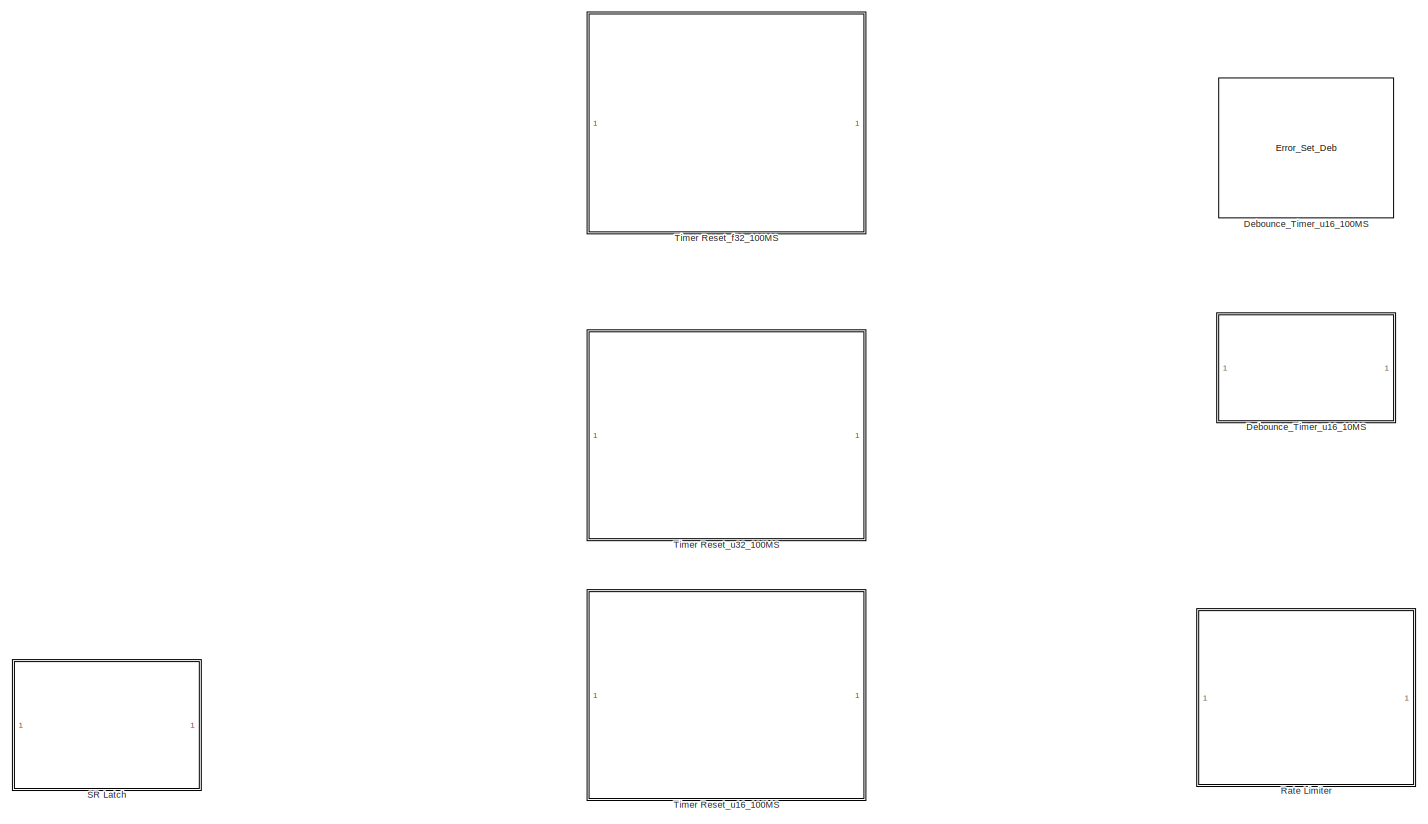
[diagram: root canvas - part 1/3, full width, top band]
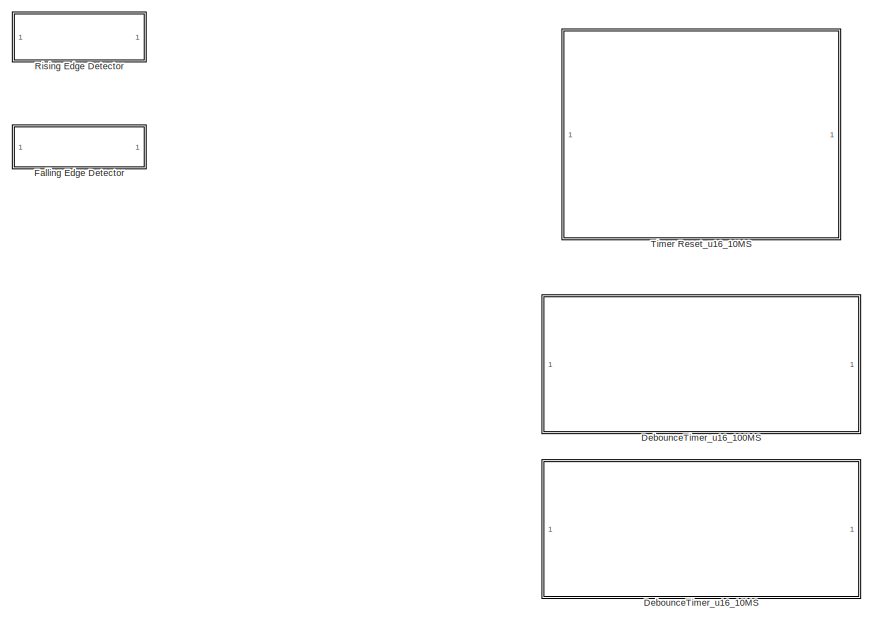
[diagram: root canvas - part 2/3, bottom left region]
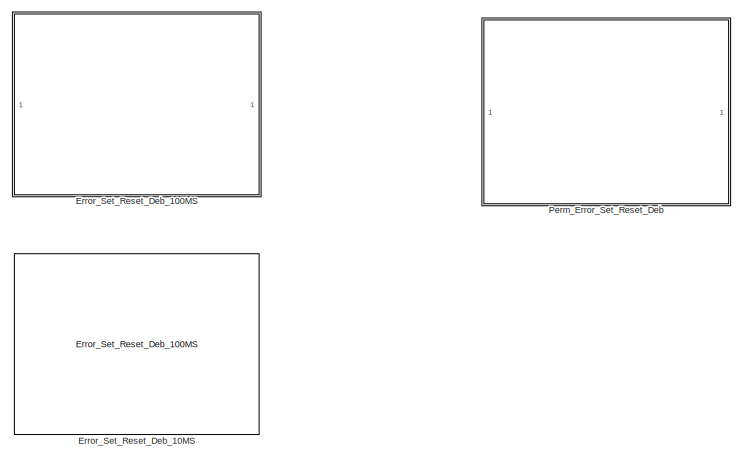
[diagram: root canvas - part 3/3, bottom right region]
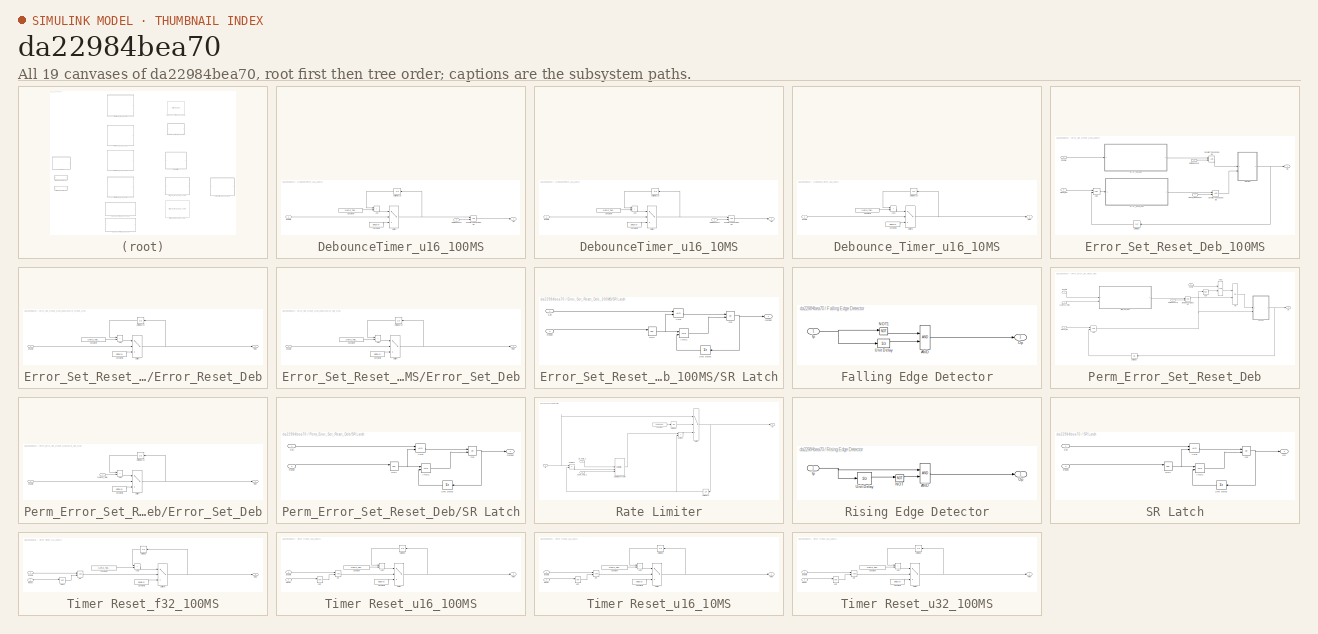
[diagram: thumbnail index - all 19 canvases of the model, root first then tree order]
MODEL slx_da22984bea70
KIND library
CONFIG AbsTol = auto
CONFIG EnableMultiTasking = off
CONFIG FixedStep = auto
CONFIG MaxStep = auto
CONFIG MinStep = auto
CONFIG RelTol = 1e-3
CONFIG SampleTimeConstraint = Unconstrained
CONFIG SolverName = VariableStepAuto
CONFIG StartTime = 0.0
CONFIG StopTime = 10.0
BLOCK [SubSystem] DebounceTimer_u16_100MS
BLOCK [Sum] DebounceTimer_u16_100MS/Add
  IconShape = rectangular
BLOCK [Constant] DebounceTimer_u16_100MS/Constant7
  Value = SAMPLE_TIME_100MS
BLOCK [Constant] DebounceTimer_u16_100MS/Constant8
  Value = uint16(0)
BLOCK [Inport] DebounceTimer_u16_100MS/Enable
BLOCK [RelationalOperator] DebounceTimer_u16_100MS/GreaterThanOrEqual2
  InputSameDT = off
  OutDataTypeStr = boolean
  RndMeth = Simplest
BLOCK [Outport] DebounceTimer_u16_100MS/Op
BLOCK [Inport] DebounceTimer_u16_100MS/SetDebounce
  Port = 2
BLOCK [Switch] DebounceTimer_u16_100MS/Switch
  Criteria = u2 ~= 0
  InputSameDT = off
  SaturateOnIntegerOverflow = off
BLOCK [UnitDelay] DebounceTimer_u16_100MS/Unit Delay10
  HasFrameUpgradeWarning = on
  SampleTime = -1
BLOCK [SubSystem] DebounceTimer_u16_10MS
BLOCK [Sum] DebounceTimer_u16_10MS/Add
  IconShape = rectangular
BLOCK [Constant] DebounceTimer_u16_10MS/Constant7
  Value = SAMPLE_TIME_10MS
BLOCK [Constant] DebounceTimer_u16_10MS/Constant8
  Value = uint16(0)
BLOCK [Inport] DebounceTimer_u16_10MS/Enable
BLOCK [RelationalOperator] DebounceTimer_u16_10MS/GreaterThanOrEqual2
  InputSameDT = off
  OutDataTypeStr = boolean
  RndMeth = Simplest
BLOCK [Outport] DebounceTimer_u16_10MS/Op
BLOCK [Inport] DebounceTimer_u16_10MS/SetDebounce
  Port = 2
BLOCK [Switch] DebounceTimer_u16_10MS/Switch
  Criteria = u2 ~= 0
  InputSameDT = off
  SaturateOnIntegerOverflow = off
BLOCK [UnitDelay] DebounceTimer_u16_10MS/Unit Delay10
  HasFrameUpgradeWarning = on
  SampleTime = -1
BLOCK [Reference] Debounce_Timer_u16_100MS  REF=$bdroot/Error_Set_Reset_Deb_100MS/Error_Set_Deb
  SourceBlock = $bdroot/Error_Set_Reset_Deb_100MS/Error_Set_Deb
  SourceType = SubSystem
BLOCK [SubSystem] Debounce_Timer_u16_10MS
BLOCK [Sum] Debounce_Timer_u16_10MS/Add1
  IconShape = rectangular
BLOCK [Constant] Debounce_Timer_u16_10MS/Constant7
  Value = SAMPLE_TIME_10MS
BLOCK [Constant] Debounce_Timer_u16_10MS/Constant8
  Value = uint16(0)
BLOCK [Inport] Debounce_Timer_u16_10MS/Enable
BLOCK [Switch] Debounce_Timer_u16_10MS/Switch2
  Criteria = u2 ~= 0
  InputSameDT = off
  SaturateOnIntegerOverflow = off
BLOCK [Outport] Debounce_Timer_u16_10MS/Timer
BLOCK [UnitDelay] Debounce_Timer_u16_10MS/Unit Delay10
  HasFrameUpgradeWarning = on
  SampleTime = -1
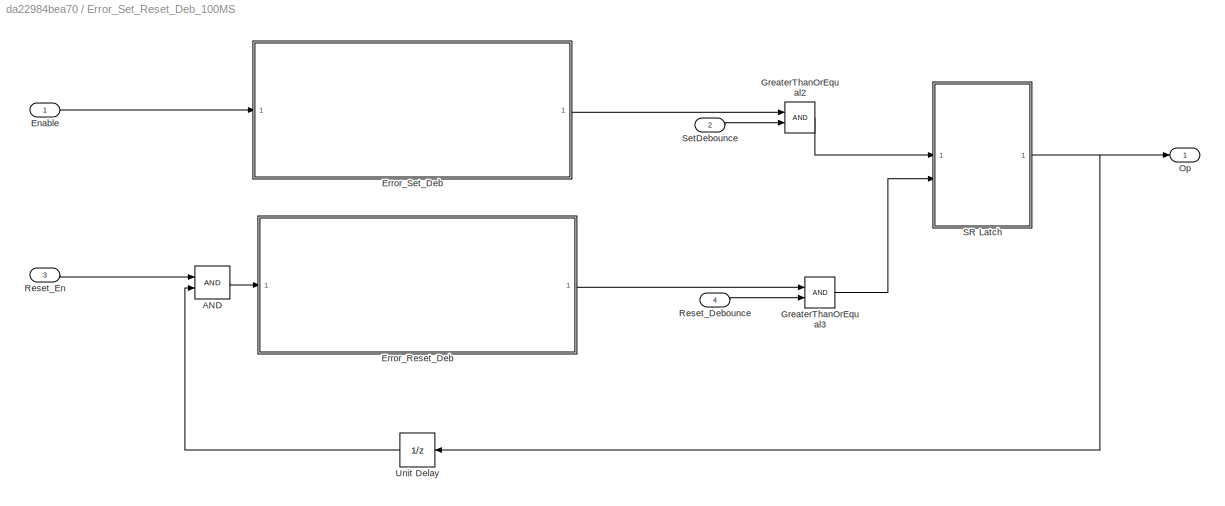
BLOCK [SubSystem] Error_Set_Reset_Deb_100MS
BLOCK [Logic] Error_Set_Reset_Deb_100MS/AND
  AllPortsSameDT = off
  OutDataTypeStr = boolean
BLOCK [Inport] Error_Set_Reset_Deb_100MS/Enable
BLOCK [SubSystem] Error_Set_Reset_Deb_100MS/Error_Reset_Deb
BLOCK [Sum] Error_Set_Reset_Deb_100MS/Error_Reset_Deb/Add
  IconShape = rectangular
BLOCK [Constant] Error_Set_Reset_Deb_100MS/Error_Reset_Deb/Constant7
  Value = SAMPLE_TIME_100MS
BLOCK [Constant] Error_Set_Reset_Deb_100MS/Error_Reset_Deb/Constant8
  Value = uint16(0)
BLOCK [Inport] Error_Set_Reset_Deb_100MS/Error_Reset_Deb/Enable
BLOCK [Switch] Error_Set_Reset_Deb_100MS/Error_Reset_Deb/Switch
  Criteria = u2 ~= 0
  InputSameDT = off
  SaturateOnIntegerOverflow = off
BLOCK [Outport] Error_Set_Reset_Deb_100MS/Error_Reset_Deb/Timer
BLOCK [UnitDelay] Error_Set_Reset_Deb_100MS/Error_Reset_Deb/Unit Delay10
  HasFrameUpgradeWarning = on
  SampleTime = -1
BLOCK [SubSystem] Error_Set_Reset_Deb_100MS/Error_Set_Deb
BLOCK [Sum] Error_Set_Reset_Deb_100MS/Error_Set_Deb/Add
  IconShape = rectangular
BLOCK [Constant] Error_Set_Reset_Deb_100MS/Error_Set_Deb/Constant7
  Value = SAMPLE_TIME_100MS
BLOCK [Constant] Error_Set_Reset_Deb_100MS/Error_Set_Deb/Constant8
  Value = uint16(0)
BLOCK [Inport] Error_Set_Reset_Deb_100MS/Error_Set_Deb/Enable
BLOCK [Switch] Error_Set_Reset_Deb_100MS/Error_Set_Deb/Switch
  Criteria = u2 ~= 0
  InputSameDT = off
  SaturateOnIntegerOverflow = off
BLOCK [Outport] Error_Set_Reset_Deb_100MS/Error_Set_Deb/Timer
BLOCK [UnitDelay] Error_Set_Reset_Deb_100MS/Error_Set_Deb/Unit Delay10
  HasFrameUpgradeWarning = on
  SampleTime = -1
BLOCK [RelationalOperator] Error_Set_Reset_Deb_100MS/GreaterThanOrEqual2
  InputSameDT = off
  OutDataTypeStr = boolean
  RndMeth = Simplest
BLOCK [RelationalOperator] Error_Set_Reset_Deb_100MS/GreaterThanOrEqual3
  InputSameDT = off
  OutDataTypeStr = boolean
  RndMeth = Simplest
BLOCK [Outport] Error_Set_Reset_Deb_100MS/Op
BLOCK [Inport] Error_Set_Reset_Deb_100MS/Reset_Debounce
  Port = 4
BLOCK [Inport] Error_Set_Reset_Deb_100MS/Reset_En
  Port = 3
BLOCK [SubSystem] Error_Set_Reset_Deb_100MS/SR Latch
  Permissions = ReadOnly
BLOCK [Logic] Error_Set_Reset_Deb_100MS/SR Latch/AND
  AllPortsSameDT = off
  OutDataTypeStr = boolean
BLOCK [Logic] Error_Set_Reset_Deb_100MS/SR Latch/AND1
  AllPortsSameDT = off
  OutDataTypeStr = boolean
BLOCK [Logic] Error_Set_Reset_Deb_100MS/SR Latch/NOT
  AllPortsSameDT = off
  IconShape = distinctive
  Operator = NOT
  OutDataTypeStr = boolean
BLOCK [Logic] Error_Set_Reset_Deb_100MS/SR Latch/OR
  AllPortsSameDT = off
  Operator = OR
  OutDataTypeStr = boolean
BLOCK [Outport] Error_Set_Reset_Deb_100MS/SR Latch/Output
BLOCK [Inport] Error_Set_Reset_Deb_100MS/SR Latch/Reset
  Port = 2
BLOCK [Inport] Error_Set_Reset_Deb_100MS/SR Latch/Set
BLOCK [UnitDelay] Error_Set_Reset_Deb_100MS/SR Latch/Unit Delay
  HasFrameUpgradeWarning = on
  SampleTime = -1
BLOCK [Inport] Error_Set_Reset_Deb_100MS/SetDebounce
  Port = 2
BLOCK [UnitDelay] Error_Set_Reset_Deb_100MS/Unit Delay
  HasFrameUpgradeWarning = on
  SampleTime = -1
BLOCK [Reference] Error_Set_Reset_Deb_10MS  REF=$bdroot/Error_Set_Reset_Deb_100MS
  SourceBlock = $bdroot/Error_Set_Reset_Deb_100MS
  SourceType = SubSystem
BLOCK [SubSystem] Falling Edge Detector
BLOCK [Logic] Falling Edge Detector/AND
  AllPortsSameDT = off
  OutDataTypeStr = boolean
BLOCK [Inport] Falling Edge Detector/Ip
BLOCK [Logic] Falling Edge Detector/NOT1
  AllPortsSameDT = off
  IconShape = distinctive
  Operator = NOT
  OutDataTypeStr = boolean
BLOCK [Outport] Falling Edge Detector/Op
BLOCK [UnitDelay] Falling Edge Detector/Unit Delay
  HasFrameUpgradeWarning = on
  SampleTime = -1
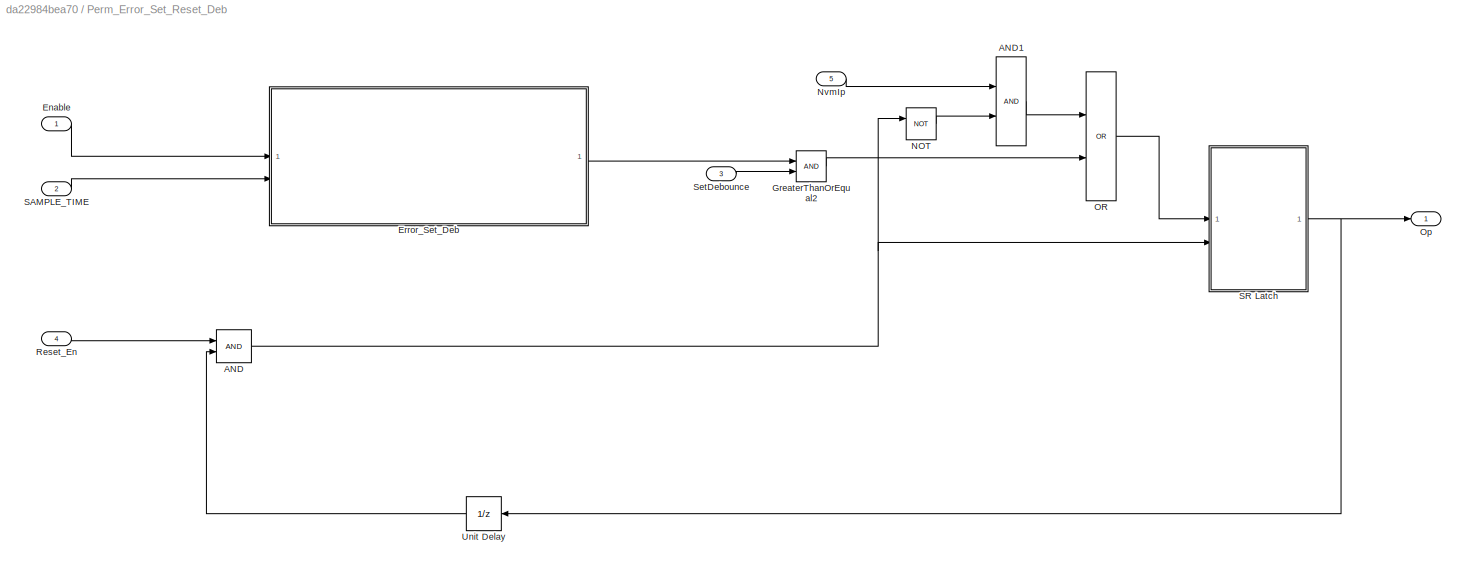
BLOCK [SubSystem] Perm_Error_Set_Reset_Deb
  AncestorBlock = BMS_MAIN_LIB/Error_Set_Reset_Deb_100MS
BLOCK [Logic] Perm_Error_Set_Reset_Deb/AND
  AllPortsSameDT = off
  OutDataTypeStr = boolean
BLOCK [Logic] Perm_Error_Set_Reset_Deb/AND1
  AllPortsSameDT = off
  OutDataTypeStr = boolean
BLOCK [Inport] Perm_Error_Set_Reset_Deb/Enable
BLOCK [SubSystem] Perm_Error_Set_Reset_Deb/Error_Set_Deb
BLOCK [Sum] Perm_Error_Set_Reset_Deb/Error_Set_Deb/Add
  IconShape = rectangular
BLOCK [Constant] Perm_Error_Set_Reset_Deb/Error_Set_Deb/Constant8
  Value = uint16(0)
BLOCK [Inport] Perm_Error_Set_Reset_Deb/Error_Set_Deb/Enable
BLOCK [Inport] Perm_Error_Set_Reset_Deb/Error_Set_Deb/SAMPLE_TIME
  Port = 2
BLOCK [Switch] Perm_Error_Set_Reset_Deb/Error_Set_Deb/Switch
  Criteria = u2 ~= 0
  InputSameDT = off
  SaturateOnIntegerOverflow = off
BLOCK [Outport] Perm_Error_Set_Reset_Deb/Error_Set_Deb/Timer
BLOCK [UnitDelay] Perm_Error_Set_Reset_Deb/Error_Set_Deb/Unit Delay10
  HasFrameUpgradeWarning = on
  SampleTime = -1
BLOCK [RelationalOperator] Perm_Error_Set_Reset_Deb/GreaterThanOrEqual2
  InputSameDT = off
  OutDataTypeStr = boolean
  RndMeth = Simplest
BLOCK [Logic] Perm_Error_Set_Reset_Deb/NOT
  AllPortsSameDT = off
  IconShape = distinctive
  Operator = NOT
  OutDataTypeStr = boolean
BLOCK [Inport] Perm_Error_Set_Reset_Deb/NvmIp
  Port = 5
BLOCK [Logic] Perm_Error_Set_Reset_Deb/OR
  AllPortsSameDT = off
  Operator = OR
  OutDataTypeStr = boolean
BLOCK [Outport] Perm_Error_Set_Reset_Deb/Op
BLOCK [Inport] Perm_Error_Set_Reset_Deb/Reset_En
  Port = 4
BLOCK [Inport] Perm_Error_Set_Reset_Deb/SAMPLE_TIME
  Port = 2
BLOCK [SubSystem] Perm_Error_Set_Reset_Deb/SR Latch
  Permissions = ReadOnly
BLOCK [Logic] Perm_Error_Set_Reset_Deb/SR Latch/AND
  AllPortsSameDT = off
  OutDataTypeStr = boolean
BLOCK [Logic] Perm_Error_Set_Reset_Deb/SR Latch/AND1
  AllPortsSameDT = off
  OutDataTypeStr = boolean
BLOCK [Logic] Perm_Error_Set_Reset_Deb/SR Latch/NOT
  AllPortsSameDT = off
  IconShape = distinctive
  Operator = NOT
  OutDataTypeStr = boolean
BLOCK [Logic] Perm_Error_Set_Reset_Deb/SR Latch/OR
  AllPortsSameDT = off
  Operator = OR
  OutDataTypeStr = boolean
BLOCK [Outport] Perm_Error_Set_Reset_Deb/SR Latch/Output
BLOCK [Inport] Perm_Error_Set_Reset_Deb/SR Latch/Reset
  Port = 2
BLOCK [Inport] Perm_Error_Set_Reset_Deb/SR Latch/Set
BLOCK [UnitDelay] Perm_Error_Set_Reset_Deb/SR Latch/Unit Delay
  HasFrameUpgradeWarning = on
  SampleTime = -1
BLOCK [Inport] Perm_Error_Set_Reset_Deb/SetDebounce
  Port = 3
BLOCK [UnitDelay] Perm_Error_Set_Reset_Deb/Unit Delay
  HasFrameUpgradeWarning = on
  SampleTime = -1
BLOCK [SubSystem] Rate Limiter
BLOCK [Constant] Rate Limiter/Constant
  Value = boolean(0)
BLOCK [Inport] Rate Limiter/Down_Rate_s
  Port = 3
BLOCK [Inport] Rate Limiter/Ip
BLOCK [Outport] Rate Limiter/Op
BLOCK [Reference] Rate Limiter/Saturation Dynamic  REF=simulink/Discontinuities/Saturation
Dynamic
  SourceBlock = simulink/Discontinuities/Saturation\nDynamic
  SourceType = Saturation Dynamic
BLOCK [Sum] Rate Limiter/Subtract
  IconShape = rectangular
BLOCK [Sum] Rate Limiter/Subtract1
  IconShape = rectangular
  Inputs = +-
BLOCK [Switch] Rate Limiter/Switch
  Criteria = u2 ~= 0
  InputSameDT = off
  SaturateOnIntegerOverflow = off
BLOCK [UnitDelay] Rate Limiter/Unit Delay
  HasFrameUpgradeWarning = on
  InitialCondition = boolean(1)
  SampleTime = -1
BLOCK [UnitDelay] Rate Limiter/Unit Delay2
  HasFrameUpgradeWarning = on
  SampleTime = -1
BLOCK [Inport] Rate Limiter/Up_Rate_s
  Port = 2
BLOCK [SubSystem] Rising Edge Detector
BLOCK [Logic] Rising Edge Detector/AND
  AllPortsSameDT = off
  OutDataTypeStr = boolean
BLOCK [Inport] Rising Edge Detector/Ip
BLOCK [Logic] Rising Edge Detector/NOT
  AllPortsSameDT = off
  IconShape = distinctive
  Operator = NOT
  OutDataTypeStr = boolean
BLOCK [Outport] Rising Edge Detector/Op
BLOCK [UnitDelay] Rising Edge Detector/Unit Delay
  HasFrameUpgradeWarning = on
  SampleTime = -1
BLOCK [SubSystem] SR Latch
BLOCK [Logic] SR Latch/AND
  AllPortsSameDT = off
  OutDataTypeStr = boolean
BLOCK [Logic] SR Latch/AND1
  AllPortsSameDT = off
  OutDataTypeStr = boolean
BLOCK [Logic] SR Latch/NOT
  AllPortsSameDT = off
  IconShape = distinctive
  Operator = NOT
  OutDataTypeStr = boolean
BLOCK [Logic] SR Latch/OR
  AllPortsSameDT = off
  Operator = OR
  OutDataTypeStr = boolean
BLOCK [Outport] SR Latch/Op
BLOCK [Inport] SR Latch/Reset
  Port = 2
BLOCK [Inport] SR Latch/Set
BLOCK [UnitDelay] SR Latch/Unit Delay
  HasFrameUpgradeWarning = on
  SampleTime = -1
BLOCK [SubSystem] Timer Reset_f32_100MS
BLOCK [Sum] Timer Reset_f32_100MS/Add1
  IconShape = rectangular
BLOCK [Constant] Timer Reset_f32_100MS/Constant2
  OutDataTypeStr = single
  Value = SAMPLE_TIME_100MS_f32
BLOCK [Constant] Timer Reset_f32_100MS/Constant3
  Value = single(0)
BLOCK [Inport] Timer Reset_f32_100MS/Enable
BLOCK [Logic] Timer Reset_f32_100MS/NOT2
  AllPortsSameDT = off
  IconShape = distinctive
  Operator = NOT
  OutDataTypeStr = boolean
BLOCK [Logic] Timer Reset_f32_100MS/OR
  AllPortsSameDT = off
  OutDataTypeStr = boolean
BLOCK [Inport] Timer Reset_f32_100MS/Reset
  Port = 2
BLOCK [Switch] Timer Reset_f32_100MS/Switch6
  Criteria = u2 ~= 0
  InputSameDT = off
  SaturateOnIntegerOverflow = off
BLOCK [Outport] Timer Reset_f32_100MS/Timer
BLOCK [UnitDelay] Timer Reset_f32_100MS/Unit Delay
  HasFrameUpgradeWarning = on
  SampleTime = -1
BLOCK [SubSystem] Timer Reset_u16_100MS
BLOCK [Sum] Timer Reset_u16_100MS/Add
  IconShape = rectangular
BLOCK [Constant] Timer Reset_u16_100MS/Constant
  OutDataTypeStr = uint16
  Value = SAMPLE_TIME_100MS
BLOCK [Constant] Timer Reset_u16_100MS/Constant1
  Value = uint16(0)
BLOCK [Inport] Timer Reset_u16_100MS/Enable
BLOCK [Logic] Timer Reset_u16_100MS/NOT
  AllPortsSameDT = off
  IconShape = distinctive
  Operator = NOT
  OutDataTypeStr = boolean
BLOCK [Logic] Timer Reset_u16_100MS/OR
  AllPortsSameDT = off
  OutDataTypeStr = boolean
BLOCK [Inport] Timer Reset_u16_100MS/Reset
  Port = 2
BLOCK [Switch] Timer Reset_u16_100MS/Switch
  Criteria = u2 ~= 0
  InputSameDT = off
  SaturateOnIntegerOverflow = off
BLOCK [Outport] Timer Reset_u16_100MS/Timer
BLOCK [UnitDelay] Timer Reset_u16_100MS/Unit Delay
  HasFrameUpgradeWarning = on
  SampleTime = -1
BLOCK [SubSystem] Timer Reset_u16_10MS
BLOCK [Sum] Timer Reset_u16_10MS/Add
  IconShape = rectangular
BLOCK [Constant] Timer Reset_u16_10MS/Constant
  OutDataTypeStr = uint16
  Value = SAMPLE_TIME_10MS
BLOCK [Constant] Timer Reset_u16_10MS/Constant1
  Value = uint16(0)
BLOCK [Inport] Timer Reset_u16_10MS/Enable
BLOCK [Logic] Timer Reset_u16_10MS/NOT
  AllPortsSameDT = off
  IconShape = distinctive
  Operator = NOT
  OutDataTypeStr = boolean
BLOCK [Logic] Timer Reset_u16_10MS/OR
  AllPortsSameDT = off
  OutDataTypeStr = boolean
BLOCK [Inport] Timer Reset_u16_10MS/Reset
  Port = 2
BLOCK [Switch] Timer Reset_u16_10MS/Switch
  Criteria = u2 ~= 0
  InputSameDT = off
  SaturateOnIntegerOverflow = off
BLOCK [Outport] Timer Reset_u16_10MS/Timer
BLOCK [UnitDelay] Timer Reset_u16_10MS/Unit Delay
  HasFrameUpgradeWarning = on
  SampleTime = -1
BLOCK [SubSystem] Timer Reset_u32_100MS
BLOCK [Sum] Timer Reset_u32_100MS/Add
  IconShape = rectangular
BLOCK [Constant] Timer Reset_u32_100MS/Constant
  OutDataTypeStr = uint32
  Value = SAMPLE_TIME_100MS
BLOCK [Constant] Timer Reset_u32_100MS/Constant1
  Value = uint32(0)
BLOCK [Inport] Timer Reset_u32_100MS/Enable
BLOCK [Logic] Timer Reset_u32_100MS/NOT
  AllPortsSameDT = off
  IconShape = distinctive
  Operator = NOT
  OutDataTypeStr = boolean
BLOCK [Logic] Timer Reset_u32_100MS/OR
  AllPortsSameDT = off
  OutDataTypeStr = boolean
BLOCK [Inport] Timer Reset_u32_100MS/Reset
  Port = 2
BLOCK [Switch] Timer Reset_u32_100MS/Switch
  Criteria = u2 ~= 0
  InputSameDT = off
  SaturateOnIntegerOverflow = off
BLOCK [Outport] Timer Reset_u32_100MS/Timer
BLOCK [UnitDelay] Timer Reset_u32_100MS/Unit Delay
  HasFrameUpgradeWarning = on
  SampleTime = -1
LINE DebounceTimer_u16_100MS/Add:1 -> DebounceTimer_u16_100MS/Switch:1
LINE DebounceTimer_u16_100MS/Constant7:1 -> DebounceTimer_u16_100MS/Add:2
LINE DebounceTimer_u16_100MS/Constant8:1 -> DebounceTimer_u16_100MS/Switch:3
LINE DebounceTimer_u16_100MS/Enable:1 -> DebounceTimer_u16_100MS/Switch:2
LINE DebounceTimer_u16_100MS/GreaterThanOrEqual2:1 -> DebounceTimer_u16_100MS/Op:1
LINE DebounceTimer_u16_100MS/SetDebounce:1 -> DebounceTimer_u16_100MS/GreaterThanOrEqual2:2
NET DebounceTimer_u16_100MS/Switch:1 -> DebounceTimer_u16_100MS/GreaterThanOrEqual2:1, DebounceTimer_u16_100MS/Unit Delay10:1
LINE DebounceTimer_u16_100MS/Unit Delay10:1 -> DebounceTimer_u16_100MS/Add:1
LINE DebounceTimer_u16_10MS/Add:1 -> DebounceTimer_u16_10MS/Switch:1
LINE DebounceTimer_u16_10MS/Constant7:1 -> DebounceTimer_u16_10MS/Add:2
LINE DebounceTimer_u16_10MS/Constant8:1 -> DebounceTimer_u16_10MS/Switch:3
LINE DebounceTimer_u16_10MS/Enable:1 -> DebounceTimer_u16_10MS/Switch:2
LINE DebounceTimer_u16_10MS/GreaterThanOrEqual2:1 -> DebounceTimer_u16_10MS/Op:1
LINE DebounceTimer_u16_10MS/SetDebounce:1 -> DebounceTimer_u16_10MS/GreaterThanOrEqual2:2
NET DebounceTimer_u16_10MS/Switch:1 -> DebounceTimer_u16_10MS/GreaterThanOrEqual2:1, DebounceTimer_u16_10MS/Unit Delay10:1
LINE DebounceTimer_u16_10MS/Unit Delay10:1 -> DebounceTimer_u16_10MS/Add:1
LINE Debounce_Timer_u16_10MS/Add1:1 -> Debounce_Timer_u16_10MS/Switch2:1
LINE Debounce_Timer_u16_10MS/Constant7:1 -> Debounce_Timer_u16_10MS/Add1:2
LINE Debounce_Timer_u16_10MS/Constant8:1 -> Debounce_Timer_u16_10MS/Switch2:3
LINE Debounce_Timer_u16_10MS/Enable:1 -> Debounce_Timer_u16_10MS/Switch2:2
NET Debounce_Timer_u16_10MS/Switch2:1 -> Debounce_Timer_u16_10MS/Timer:1, Debounce_Timer_u16_10MS/Unit Delay10:1
LINE Debounce_Timer_u16_10MS/Unit Delay10:1 -> Debounce_Timer_u16_10MS/Add1:1
LINE Error_Set_Reset_Deb_100MS/AND:1 -> Error_Set_Reset_Deb_100MS/Error_Reset_Deb:1
LINE Error_Set_Reset_Deb_100MS/Enable:1 -> Error_Set_Reset_Deb_100MS/Error_Set_Deb:1
LINE Error_Set_Reset_Deb_100MS/Error_Reset_Deb/Add:1 -> Error_Set_Reset_Deb_100MS/Error_Reset_Deb/Switch:1
LINE Error_Set_Reset_Deb_100MS/Error_Reset_Deb/Constant7:1 -> Error_Set_Reset_Deb_100MS/Error_Reset_Deb/Add:2
LINE Error_Set_Reset_Deb_100MS/Error_Reset_Deb/Constant8:1 -> Error_Set_Reset_Deb_100MS/Error_Reset_Deb/Switch:3
LINE Error_Set_Reset_Deb_100MS/Error_Reset_Deb/Enable:1 -> Error_Set_Reset_Deb_100MS/Error_Reset_Deb/Switch:2
NET Error_Set_Reset_Deb_100MS/Error_Reset_Deb/Switch:1 -> Error_Set_Reset_Deb_100MS/Error_Reset_Deb/Timer:1, Error_Set_Reset_Deb_100MS/Error_Reset_Deb/Unit Delay10:1
LINE Error_Set_Reset_Deb_100MS/Error_Reset_Deb/Unit Delay10:1 -> Error_Set_Reset_Deb_100MS/Error_Reset_Deb/Add:1
LINE Error_Set_Reset_Deb_100MS/Error_Reset_Deb:1 -> Error_Set_Reset_Deb_100MS/GreaterThanOrEqual3:1
LINE Error_Set_Reset_Deb_100MS/Error_Set_Deb/Add:1 -> Error_Set_Reset_Deb_100MS/Error_Set_Deb/Switch:1
LINE Error_Set_Reset_Deb_100MS/Error_Set_Deb/Constant7:1 -> Error_Set_Reset_Deb_100MS/Error_Set_Deb/Add:2
LINE Error_Set_Reset_Deb_100MS/Error_Set_Deb/Constant8:1 -> Error_Set_Reset_Deb_100MS/Error_Set_Deb/Switch:3
LINE Error_Set_Reset_Deb_100MS/Error_Set_Deb/Enable:1 -> Error_Set_Reset_Deb_100MS/Error_Set_Deb/Switch:2
NET Error_Set_Reset_Deb_100MS/Error_Set_Deb/Switch:1 -> Error_Set_Reset_Deb_100MS/Error_Set_Deb/Timer:1, Error_Set_Reset_Deb_100MS/Error_Set_Deb/Unit Delay10:1
LINE Error_Set_Reset_Deb_100MS/Error_Set_Deb/Unit Delay10:1 -> Error_Set_Reset_Deb_100MS/Error_Set_Deb/Add:1
LINE Error_Set_Reset_Deb_100MS/Error_Set_Deb:1 -> Error_Set_Reset_Deb_100MS/GreaterThanOrEqual2:1
LINE Error_Set_Reset_Deb_100MS/GreaterThanOrEqual2:1 -> Error_Set_Reset_Deb_100MS/SR Latch:1
LINE Error_Set_Reset_Deb_100MS/GreaterThanOrEqual3:1 -> Error_Set_Reset_Deb_100MS/SR Latch:2
LINE Error_Set_Reset_Deb_100MS/Reset_Debounce:1 -> Error_Set_Reset_Deb_100MS/GreaterThanOrEqual3:2
LINE Error_Set_Reset_Deb_100MS/Reset_En:1 -> Error_Set_Reset_Deb_100MS/AND:1
LINE Error_Set_Reset_Deb_100MS/SR Latch/AND1:1 -> Error_Set_Reset_Deb_100MS/SR Latch/OR:2
LINE Error_Set_Reset_Deb_100MS/SR Latch/AND:1 -> Error_Set_Reset_Deb_100MS/SR Latch/OR:1
NET Error_Set_Reset_Deb_100MS/SR Latch/NOT:1 -> Error_Set_Reset_Deb_100MS/SR Latch/AND1:1, Error_Set_Reset_Deb_100MS/SR Latch/AND:2
NET Error_Set_Reset_Deb_100MS/SR Latch/OR:1 -> Error_Set_Reset_Deb_100MS/SR Latch/Output:1, Error_Set_Reset_Deb_100MS/SR Latch/Unit Delay:1
LINE Error_Set_Reset_Deb_100MS/SR Latch/Reset:1 -> Error_Set_Reset_Deb_100MS/SR Latch/NOT:1
LINE Error_Set_Reset_Deb_100MS/SR Latch/Set:1 -> Error_Set_Reset_Deb_100MS/SR Latch/AND:1
LINE Error_Set_Reset_Deb_100MS/SR Latch/Unit Delay:1 -> Error_Set_Reset_Deb_100MS/SR Latch/AND1:2
NET Error_Set_Reset_Deb_100MS/SR Latch:1 -> Error_Set_Reset_Deb_100MS/Op:1, Error_Set_Reset_Deb_100MS/Unit Delay:1
LINE Error_Set_Reset_Deb_100MS/SetDebounce:1 -> Error_Set_Reset_Deb_100MS/GreaterThanOrEqual2:2
LINE Error_Set_Reset_Deb_100MS/Unit Delay:1 -> Error_Set_Reset_Deb_100MS/AND:2
LINE Falling Edge Detector/AND:1 -> Falling Edge Detector/Op:1
NET Falling Edge Detector/Ip:1 -> Falling Edge Detector/NOT1:1, Falling Edge Detector/Unit Delay:1
LINE Falling Edge Detector/NOT1:1 -> Falling Edge Detector/AND:1
LINE Falling Edge Detector/Unit Delay:1 -> Falling Edge Detector/AND:2
LINE Rate Limiter/Constant:1 -> Rate Limiter/Unit Delay:1
LINE Rate Limiter/Down_Rate_s:1 -> Rate Limiter/Saturation Dynamic:3
NET Rate Limiter/Ip:1 -> Rate Limiter/Subtract1:1, Rate Limiter/Switch:1
LINE Rate Limiter/Saturation Dynamic:1 -> Rate Limiter/Subtract:1
LINE Rate Limiter/Subtract1:1 -> Rate Limiter/Saturation Dynamic:2
LINE Rate Limiter/Subtract:1 -> Rate Limiter/Switch:3
NET Rate Limiter/Switch:1 -> Rate Limiter/Op:1, Rate Limiter/Unit Delay2:1
NET Rate Limiter/Unit Delay2:1 -> Rate Limiter/Subtract1:2, Rate Limiter/Subtract:2
LINE Rate Limiter/Unit Delay:1 -> Rate Limiter/Switch:2
LINE Rate Limiter/Up_Rate_s:1 -> Rate Limiter/Saturation Dynamic:1
LINE Rising Edge Detector/AND:1 -> Rising Edge Detector/Op:1
NET Rising Edge Detector/Ip:1 -> Rising Edge Detector/AND:1, Rising Edge Detector/Unit Delay:1
LINE Rising Edge Detector/NOT:1 -> Rising Edge Detector/AND:2
LINE Rising Edge Detector/Unit Delay:1 -> Rising Edge Detector/NOT:1
LINE SR Latch/AND1:1 -> SR Latch/OR:2
LINE SR Latch/AND:1 -> SR Latch/OR:1
NET SR Latch/NOT:1 -> SR Latch/AND1:1, SR Latch/AND:2
NET SR Latch/OR:1 -> SR Latch/Op:1, SR Latch/Unit Delay:1
LINE SR Latch/Reset:1 -> SR Latch/NOT:1
LINE SR Latch/Set:1 -> SR Latch/AND:1
LINE SR Latch/Unit Delay:1 -> SR Latch/AND1:2
LINE Timer Reset_f32_100MS/Add1:1 -> Timer Reset_f32_100MS/Switch6:1
LINE Timer Reset_f32_100MS/Constant2:1 -> Timer Reset_f32_100MS/Add1:2
LINE Timer Reset_f32_100MS/Constant3:1 -> Timer Reset_f32_100MS/Switch6:3
LINE Timer Reset_f32_100MS/Enable:1 -> Timer Reset_f32_100MS/OR:1
LINE Timer Reset_f32_100MS/NOT2:1 -> Timer Reset_f32_100MS/OR:2
LINE Timer Reset_f32_100MS/OR:1 -> Timer Reset_f32_100MS/Switch6:2
LINE Timer Reset_f32_100MS/Reset:1 -> Timer Reset_f32_100MS/NOT2:1
NET Timer Reset_f32_100MS/Switch6:1 -> Timer Reset_f32_100MS/Timer:1, Timer Reset_f32_100MS/Unit Delay:1
LINE Timer Reset_f32_100MS/Unit Delay:1 -> Timer Reset_f32_100MS/Add1:1
LINE Timer Reset_u16_100MS/Add:1 -> Timer Reset_u16_100MS/Switch:1
LINE Timer Reset_u16_100MS/Constant1:1 -> Timer Reset_u16_100MS/Switch:3
LINE Timer Reset_u16_100MS/Constant:1 -> Timer Reset_u16_100MS/Add:2
LINE Timer Reset_u16_100MS/Enable:1 -> Timer Reset_u16_100MS/OR:1
LINE Timer Reset_u16_100MS/NOT:1 -> Timer Reset_u16_100MS/OR:2
LINE Timer Reset_u16_100MS/OR:1 -> Timer Reset_u16_100MS/Switch:2
LINE Timer Reset_u16_100MS/Reset:1 -> Timer Reset_u16_100MS/NOT:1
NET Timer Reset_u16_100MS/Switch:1 -> Timer Reset_u16_100MS/Timer:1, Timer Reset_u16_100MS/Unit Delay:1
LINE Timer Reset_u16_100MS/Unit Delay:1 -> Timer Reset_u16_100MS/Add:1
LINE Timer Reset_u16_10MS/Add:1 -> Timer Reset_u16_10MS/Switch:1
LINE Timer Reset_u16_10MS/Constant1:1 -> Timer Reset_u16_10MS/Switch:3
LINE Timer Reset_u16_10MS/Constant:1 -> Timer Reset_u16_10MS/Add:2
LINE Timer Reset_u16_10MS/Enable:1 -> Timer Reset_u16_10MS/OR:1
LINE Timer Reset_u16_10MS/NOT:1 -> Timer Reset_u16_10MS/OR:2
LINE Timer Reset_u16_10MS/OR:1 -> Timer Reset_u16_10MS/Switch:2
LINE Timer Reset_u16_10MS/Reset:1 -> Timer Reset_u16_10MS/NOT:1
NET Timer Reset_u16_10MS/Switch:1 -> Timer Reset_u16_10MS/Timer:1, Timer Reset_u16_10MS/Unit Delay:1
LINE Timer Reset_u16_10MS/Unit Delay:1 -> Timer Reset_u16_10MS/Add:1
LINE Timer Reset_u32_100MS/Add:1 -> Timer Reset_u32_100MS/Switch:1
LINE Timer Reset_u32_100MS/Constant1:1 -> Timer Reset_u32_100MS/Switch:3
LINE Timer Reset_u32_100MS/Constant:1 -> Timer Reset_u32_100MS/Add:2
LINE Timer Reset_u32_100MS/Enable:1 -> Timer Reset_u32_100MS/OR:1
LINE Timer Reset_u32_100MS/NOT:1 -> Timer Reset_u32_100MS/OR:2
LINE Timer Reset_u32_100MS/OR:1 -> Timer Reset_u32_100MS/Switch:2
LINE Timer Reset_u32_100MS/Reset:1 -> Timer Reset_u32_100MS/NOT:1
NET Timer Reset_u32_100MS/Switch:1 -> Timer Reset_u32_100MS/Timer:1, Timer Reset_u32_100MS/Unit Delay:1
LINE Timer Reset_u32_100MS/Unit Delay:1 -> Timer Reset_u32_100MS/Add:1
note: NET lines group one-source signal fan-out (src -> all destinations, sorted); 1:1 wires keep LINE
